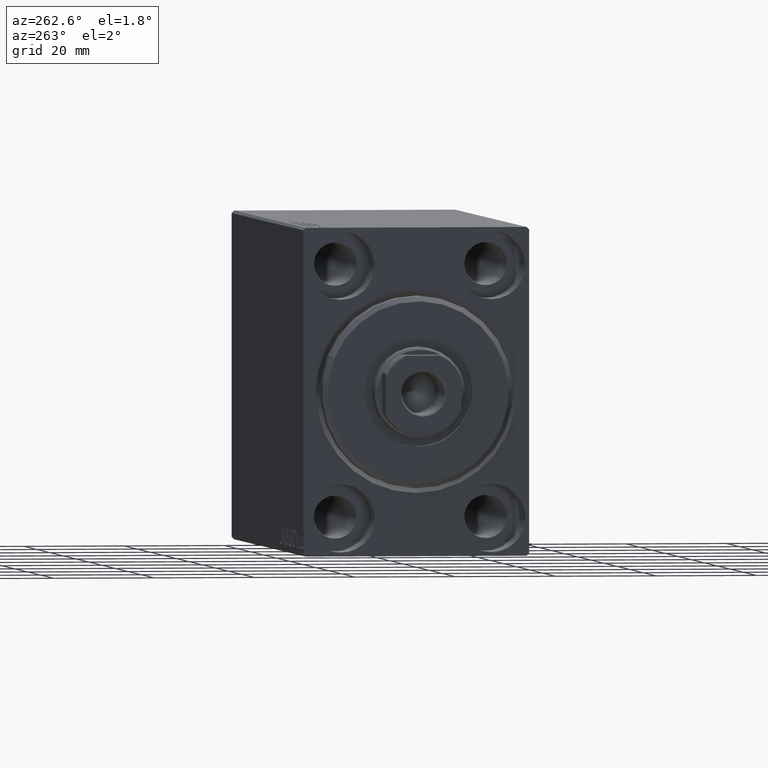
[diagram: clean part render]
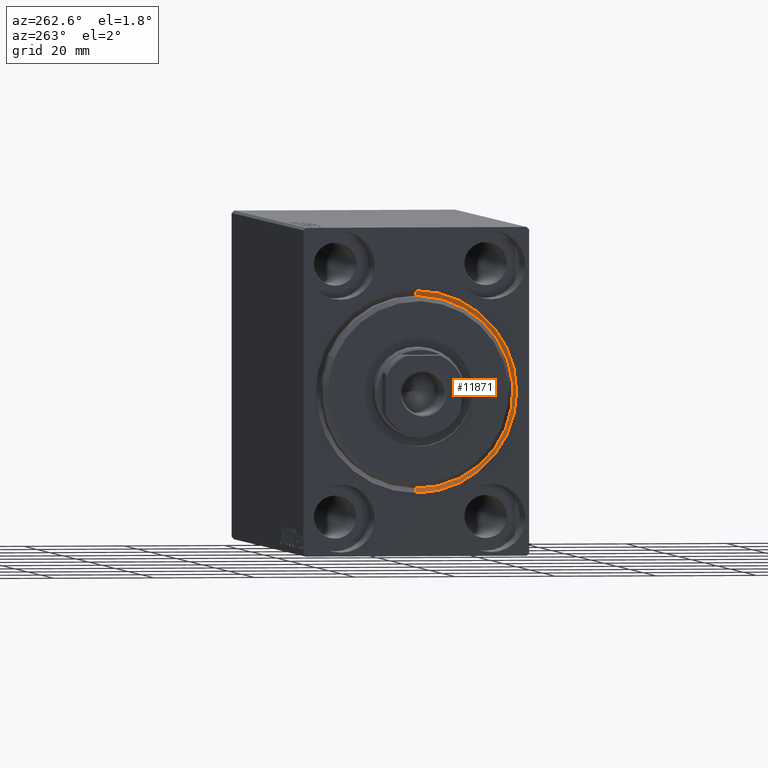
[diagram: same view with one face highlighted and labeled with its STEP entity id]
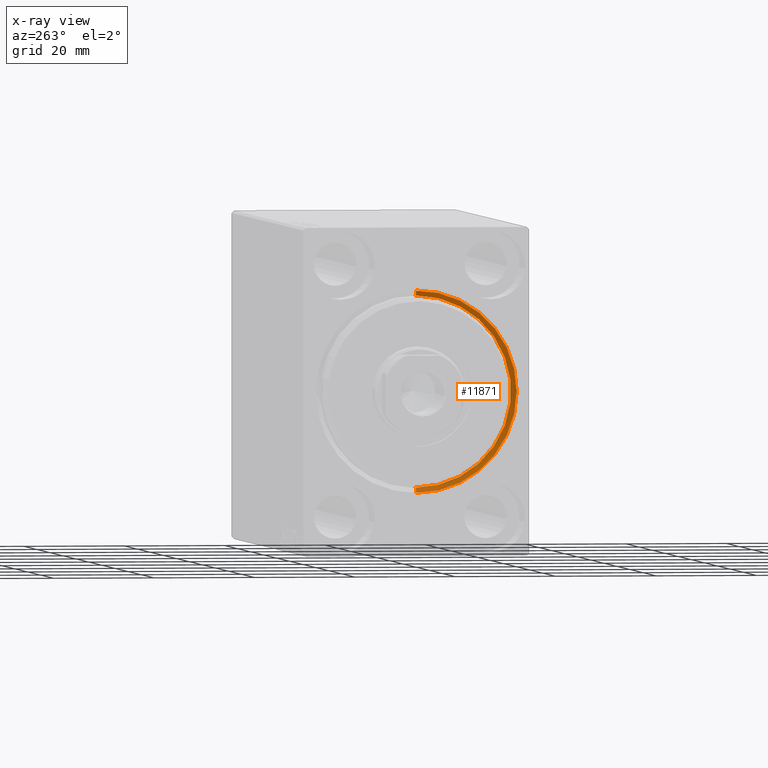
[diagram: x-ray of the same camera — body ghosted, the highlighted face saturated]
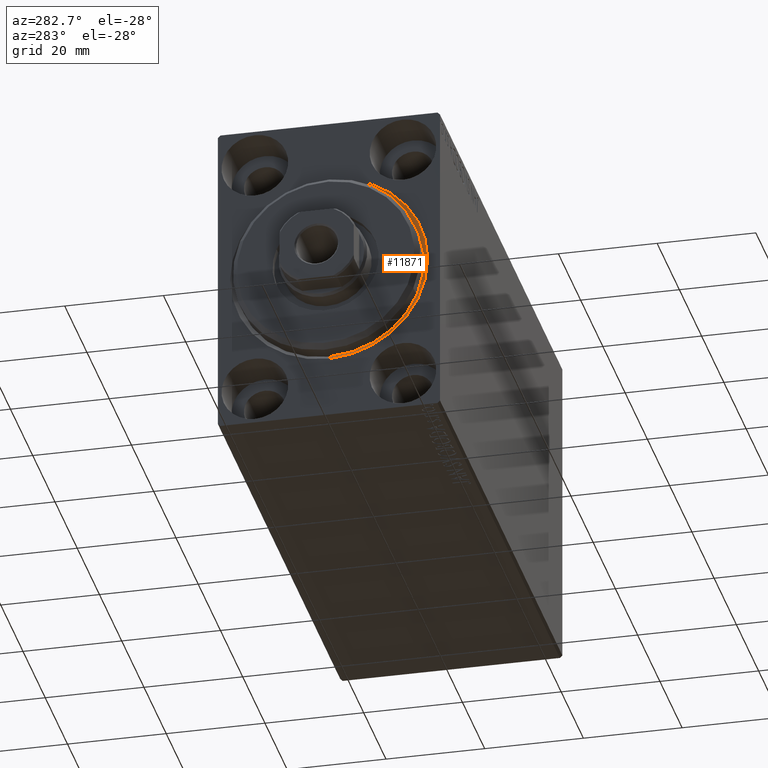
[diagram: same view with one face highlighted and labeled with its STEP entity id]
A machine part, auxiliary view. The second image highlights one B-rep face of the part: STEP entity #11871.
The next image is the same camera in x-ray: the body ghosted, the highlighted face saturated — about 0% of this face is hidden behind the body in this view.
A second angle (auxiliary view) of the same face is appended — the face is thin or edge-on in the first view.
In plain terms, the highlighted conical surface has half-angle 45 deg.
Its self-contained STEP definition (entity closure, byte-faithful):
#628 = CIRCLE ( 'NONE', #6300, 19.00000000000000000 ) ;
#866 = DIRECTION ( 'NONE',  ( -1.000000000000000000, 0.000000000000000000, 0.000000000000000000 ) ) ;
#888 = CARTESIAN_POINT ( 'NONE',  ( 1.000000000000000888, 0.000000000000000000, 19.00000000000000000 ) ) ;
#2638 = AXIS2_PLACEMENT_3D ( 'NONE', #18551, #866, #21664 ) ;
#6300 = AXIS2_PLACEMENT_3D ( 'NONE', #23848, #24280, #24062 ) ;
#6482 = VECTOR ( 'NONE', #14989, 1000.000000000000000 ) ;
#7968 = AXIS2_PLACEMENT_3D ( 'NONE', #8978, #28230, #35981 ) ;
#8978 = CARTESIAN_POINT ( 'NONE',  ( 0.000000000000000000, 0.000000000000000000, 0.000000000000000000 ) ) ;
#11871 = ADVANCED_FACE ( 'NONE', ( #41396 ), #38002, .F. ) ;
#14989 = DIRECTION ( 'NONE',  ( -0.7071067811865463515, 8.659560562354948882E-17, -0.7071067811865487940 ) ) ;
#15240 = EDGE_CURVE ( 'NONE', #33306, #17818, #628, .T. ) ;
#15283 = CARTESIAN_POINT ( 'NONE',  ( 1.000000000000000888, 2.326828918379970970E-15, -19.00000000000000000 ) ) ;
#15630 = ORIENTED_EDGE ( 'NONE', *, *, #15240, .F. ) ;
#15631 = VECTOR ( 'NONE', #27665, 1000.000000000000000 ) ;
#15754 = CIRCLE ( 'NONE', #7968, 20.00000000000000355 ) ;
#16873 = CARTESIAN_POINT ( 'NONE',  ( 1.000000000000000888, 0.000000000000000000, 19.00000000000000000 ) ) ;
#17051 = LINE ( 'NONE', #888, #15631 ) ;
#17241 = ORIENTED_EDGE ( 'NONE', *, *, #31940, .F. ) ;
#17818 = VERTEX_POINT ( 'NONE', #16873 ) ;
#18551 = CARTESIAN_POINT ( 'NONE',  ( 1.000000000000000888, 0.000000000000000000, 0.000000000000000000 ) ) ;
#19696 = ORIENTED_EDGE ( 'NONE', *, *, #27291, .F. ) ;
#21664 = DIRECTION ( 'NONE',  ( 0.000000000000000000, 0.000000000000000000, 1.000000000000000000 ) ) ;
#22282 = LINE ( 'NONE', #35148, #6482 ) ;
#23324 = VERTEX_POINT ( 'NONE', #28287 ) ;
#23848 = CARTESIAN_POINT ( 'NONE',  ( 1.000000000000000888, 0.000000000000000000, 0.000000000000000000 ) ) ;
#24062 = DIRECTION ( 'NONE',  ( 0.000000000000000000, 0.000000000000000000, -1.000000000000000000 ) ) ;
#24280 = DIRECTION ( 'NONE',  ( -1.000000000000000000, 0.000000000000000000, 0.000000000000000000 ) ) ;
#27291 = EDGE_CURVE ( 'NONE', #17818, #33015, #17051, .T. ) ;
#27449 = ORIENTED_EDGE ( 'NONE', *, *, #27770, .T. ) ;
#27665 = DIRECTION ( 'NONE',  ( -0.7071067811865463515, 0.000000000000000000, 0.7071067811865487940 ) ) ;
#27770 = EDGE_CURVE ( 'NONE', #33306, #23324, #22282, .T. ) ;
#28230 = DIRECTION ( 'NONE',  ( 1.000000000000000000, 0.000000000000000000, 0.000000000000000000 ) ) ;
#28287 = CARTESIAN_POINT ( 'NONE',  ( 0.000000000000000000, 2.449293598294706907E-15, -20.00000000000000355 ) ) ;
#29649 = EDGE_LOOP ( 'NONE', ( #15630, #27449, #17241, #19696 ) ) ;
#31940 = EDGE_CURVE ( 'NONE', #33015, #23324, #15754, .T. ) ;
#32378 = CARTESIAN_POINT ( 'NONE',  ( 0.000000000000000000, 0.000000000000000000, 20.00000000000000355 ) ) ;
#33015 = VERTEX_POINT ( 'NONE', #32378 ) ;
#33306 = VERTEX_POINT ( 'NONE', #15283 ) ;
#35148 = CARTESIAN_POINT ( 'NONE',  ( 1.000000000000000888, 2.326828918379970970E-15, -19.00000000000000000 ) ) ;
#35981 = DIRECTION ( 'NONE',  ( 0.000000000000000000, 0.000000000000000000, -1.000000000000000000 ) ) ;
#38002 = CONICAL_SURFACE ( 'NONE', #2638, 19.00000000000000000, 0.7853981633974500554 ) ;
#41396 = FACE_OUTER_BOUND ( 'NONE', #29649, .T. ) ;